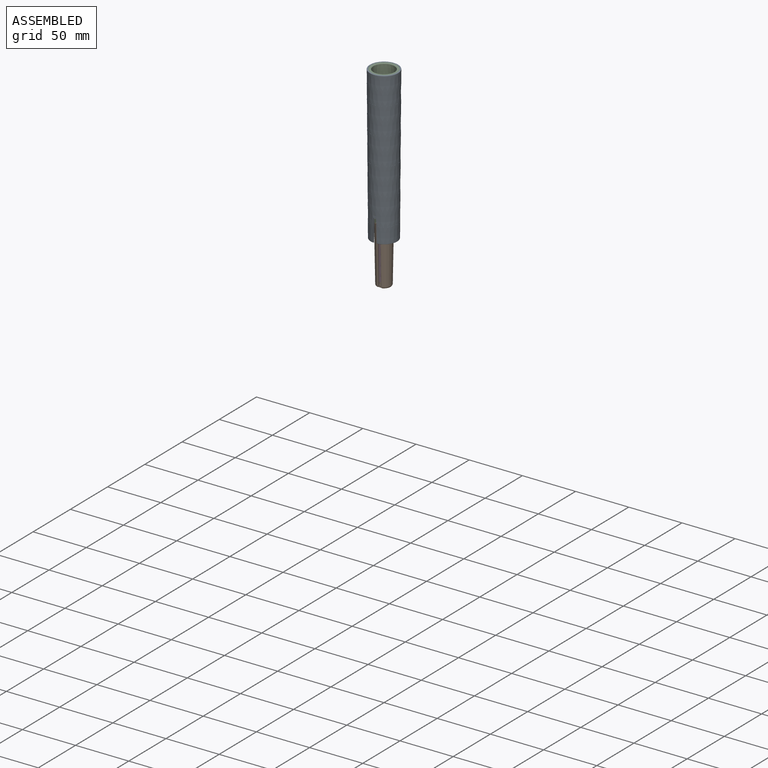
[diagram: assembled view]
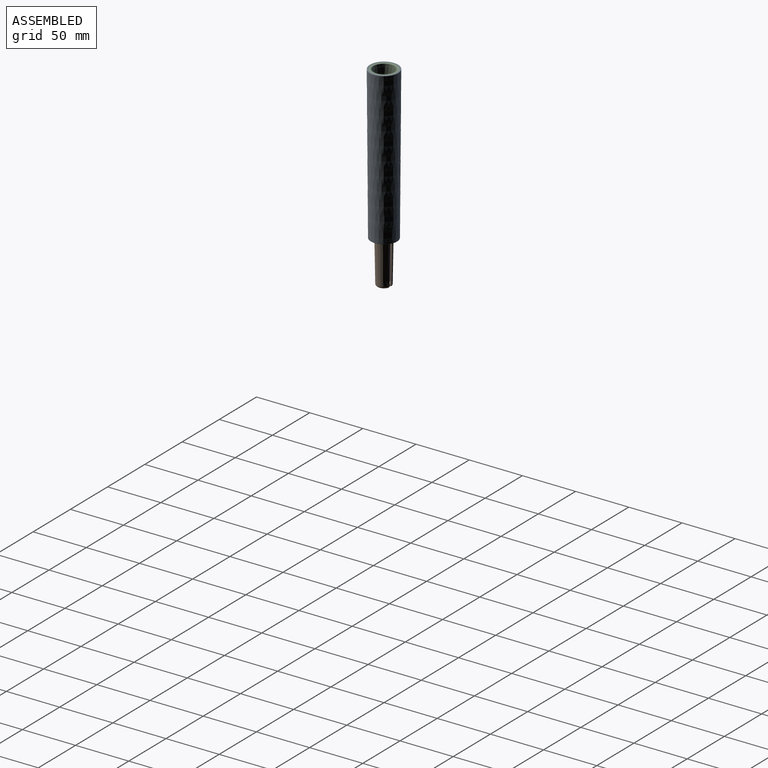
[diagram: assembled view, second angle]
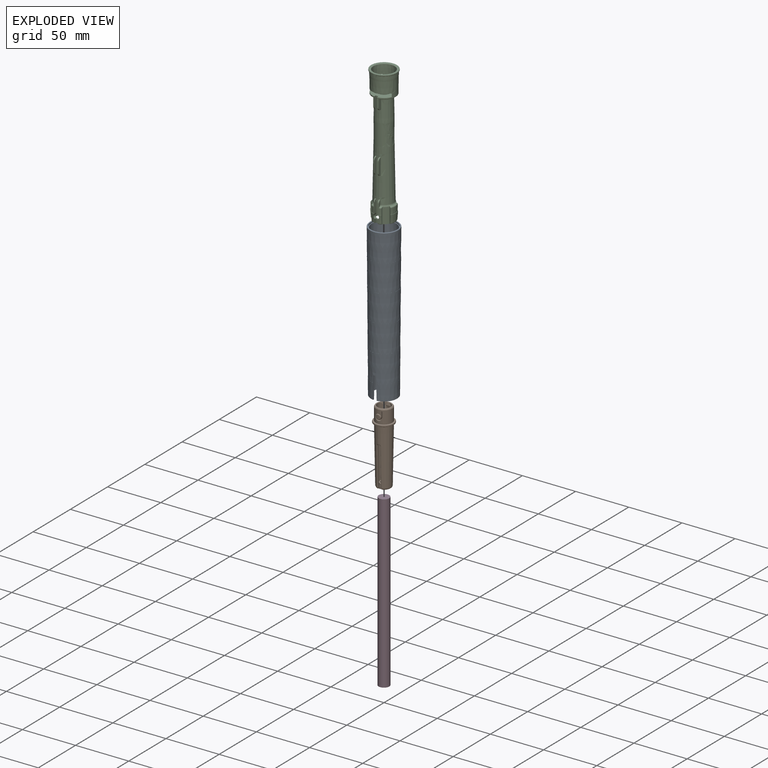
[diagram: exploded view]
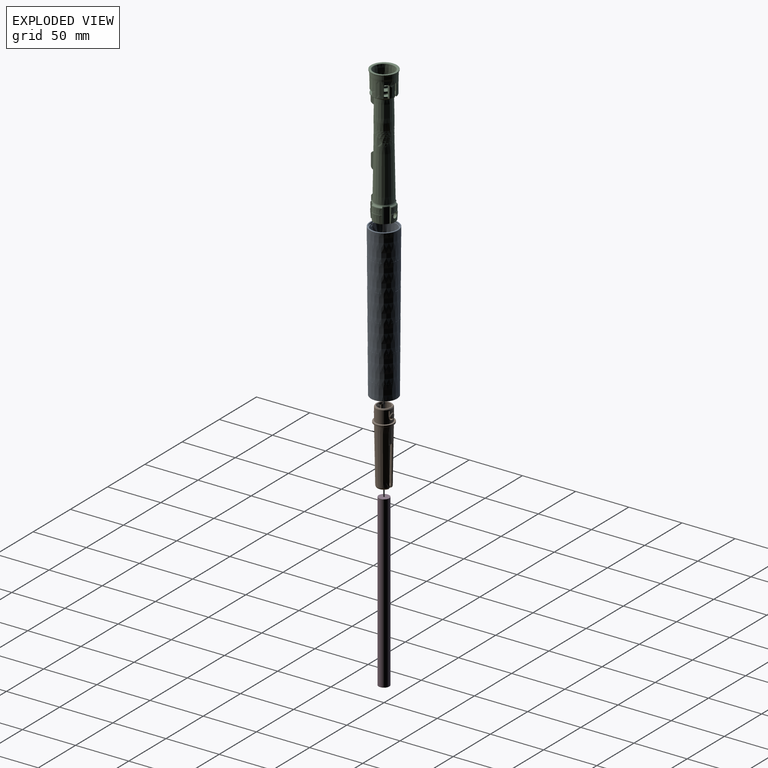
[diagram: exploded view, second angle]
ASSEMBLY  parts=4 mates=6
PART A: 39 faces, bbox 28.9x28.9x143.7 mm
  f0: plane 24.1x23.99mm, normal (0,0,-1), area 57.7mm2, adj f1,f2,f5,f6
  f1: torus R=12.05mm, axis (0,0,1), area 34.5mm2, adj f0,f2,f6,f13
  f2: plane 20.52x1.42mm, normal (-1,0,-0.02), area 26.2mm2, adj f0,f1,f3,f5,f8,f9,f13
  f3: cylinder r=0.5mm len=1.45mm, axis (0,1,0), area 1.1mm2, adj f2,f4,f5,f8
  f4: plane 1.55x1.43mm, normal (0,0,-1), area 2.2mm2, adj f3,f5,f7,f8
  f5: cone r=11.12mm half-angle=0.5deg, axis (0,0,-1), area 1623.4mm2, adj f0,f2,f3,f4,f6,f7,f29
  f6: plane 20.53x1.42mm, normal (1,0,-0.02), area 26.2mm2, adj f0,f1,f5,f7,f8,f9,f13
  f7: cylinder r=0.5mm len=1.45mm, axis (0,1,0), area 1.1mm2, adj f4,f5,f6,f8
  f8: cone r=12.45mm half-angle=0.4deg, axis (0,0,1), area 992.5mm2, adj f2,f3,f4,f6,f7,f9,f32
  f9: plane 24.9x24.83mm, normal (0,0,1), area 3.8mm2, adj f2,f6,f8,f13
  f10: cone r=12.85mm half-angle=0.4deg, axis (0,0,1), area 1063.9mm2, adj f16,f19
  f11: cone r=12.85mm half-angle=0.4deg, axis (0,0,1), area 1053.1mm2, adj f18,f22
  f12: cone r=12.85mm half-angle=0.4deg, axis (0,0,1), area 1020.2mm2, adj f32,f33
  f13: cone r=12.85mm half-angle=0.4deg, axis (0,0,1), area 1079mm2, adj f1,f2,f6,f9
  f14: cone r=12.85mm half-angle=0.4deg, axis (0,0,1), area 1034.8mm2, adj f35,f36
  f15: cone r=12.85mm half-angle=0.4deg, axis (0,0,1), area 1049.3mm2, adj f21,f38
  f16: plane 26.34x26.34mm, normal (0,0,1), area 4.1mm2, adj f10,f17
  f17: cone r=13.17mm half-angle=0.4deg, axis (0,0,1), area 1067.1mm2, adj f16,f18
  f18: plane 26.52x26.52mm, normal (0,0,-1), area 4.2mm2, adj f11,f17
  f19: plane 26.16x26.16mm, normal (0,0,-1), area 4.1mm2, adj f10,f20
  f20: cone r=12.99mm half-angle=0.4deg, axis (0,0,1), area 1052.6mm2, adj f19,f21
  f21: plane 25.98x25.98mm, normal (0,0,1), area 4.1mm2, adj f15,f20
  f22: torus R=13.05mm, axis (0,0,1), area 39.4mm2, adj f11,f23
  f23: plane 26.1x26.1mm, normal (0,0,1), area 71.1mm2, adj f22,f24
  f24: cylinder r=12.15mm len=24.3mm, axis (0,0,1), area 95mm2, adj f23,f25,f26,f30,f31
  f25: plane 24.3x24.27mm, normal (0,0,1), area 44.3mm2, adj f24,f26,f27,f28,f31
  f26: plane 2.1x0.62mm, normal (-1,0,0), area 1.3mm2, adj f24,f25,f28,f30
  f27: cone r=11.13mm half-angle=0.4deg, axis (0,0,1), area 8276.5mm2, adj f25,f28,f29,f30,f31
  f28: cone r=11.13mm half-angle=0.4deg, axis (0,0,1), area 0mm2, adj f25,f26,f27
  f29: plane 22.03x22.03mm, normal (0,0,-1), area 20.4mm2, adj f5,f27
  f30: plane 1.6x0.65mm, normal (0,0,1), area 1mm2, adj f24,f26,f27,f31
  f31: plane 2.1x0.62mm, normal (1,0,0), area 1.3mm2, adj f24,f25,f27,f30
  f32: plane 25.08x25.08mm, normal (0,0,-1), area 3.9mm2, adj f8,f12
  f33: plane 25.26x25.26mm, normal (0,0,1), area 4mm2, adj f12,f34
  f34: cone r=12.63mm half-angle=0.4deg, axis (0,0,1), area 1023.4mm2, adj f33,f35
  f35: plane 25.44x25.44mm, normal (0,0,-1), area 4mm2, adj f14,f34
  f36: plane 25.62x25.62mm, normal (0,0,1), area 4mm2, adj f14,f37
  f37: cone r=12.81mm half-angle=0.4deg, axis (0,0,1), area 1038mm2, adj f36,f38
  f38: plane 25.8x25.8mm, normal (0,0,-1), area 4mm2, adj f15,f37
PART B: 73 faces, bbox 20.7x20.7x70 mm
  f0: plane 14.4x14.4mm, normal (0,0,1), area 42.1mm2, adj f1,f71
  f1: cone r=5.62mm half-angle=1deg, axis (0,0,1), area 2104.5mm2, adj f0,f2,f3,f10,f11,f12,f13,f14
  f2: plane 4.5x1.74mm, normal (1,0,0), area 7.6mm2, adj f1,f4,f11,f22
  f3: plane 4.5x1.74mm, normal (1,0,0), area 7.6mm2, adj f1,f4,f10,f23
  f4: cylinder r=7.7mm len=15.4mm, axis (0,0,1), area 506.4mm2, adj f2,f3,f5,f8,f9,f10,f11,f12
  f5: bspline ~0.87x0.86mm, area 0.4mm2, adj f4,f7,f72
  f6: cylinder r=8.4mm len=3.93mm, axis (0,0,1), area 11.2mm2, adj f8,f9
  f7: cylinder r=8.4mm len=3.93mm, axis (0,0,1), area 11.2mm2, adj f5,f72
  f8: bspline ~0.87x0.86mm, area 0.4mm2, adj f4,f6,f9
  f9: bspline ~5.3x5.14mm, area 14.1mm2, adj f4,f6,f8,f10
  f10: cylinder r=2.5mm len=5mm, axis (0,-1,0), area 18.4mm2, adj f1,f3,f4,f9,f13
  f11: cylinder r=2.5mm len=5mm, axis (0,-1,0), area 18.4mm2, adj f1,f2,f4,f12,f72
  f12: plane 4.5x1.74mm, normal (-1,0,0), area 7.6mm2, adj f1,f4,f11,f14
  f13: plane 4.5x1.74mm, normal (-1,0,0), area 7.6mm2, adj f1,f4,f10,f15
  f14: cylinder r=0.5mm len=2.22mm, axis (0,1,0), area 2.7mm2, adj f1,f4,f12,f16
  f15: cylinder r=0.5mm len=2.22mm, axis (0,1,0), area 2.7mm2, adj f1,f4,f13,f17
  f16: plane 4.5x1.89mm, normal (1,0,0), area 8.3mm2, adj f1,f4,f14,f18
  f17: plane 4.5x1.89mm, normal (1,0,0), area 8.3mm2, adj f1,f4,f15,f19
  f18: cylinder r=3.5mm len=7mm, axis (0,-1,0), area 15mm2, adj f1,f4,f16,f20
  f19: cylinder r=3.5mm len=7mm, axis (0,-1,0), area 15mm2, adj f1,f4,f17,f21
  f20: plane 4.5x1.89mm, normal (-1,0,0), area 8.3mm2, adj f1,f4,f18,f22
  f21: plane 4.5x1.89mm, normal (-1,0,0), area 8.3mm2, adj f1,f4,f19,f23
  f22: cylinder r=0.5mm len=2.22mm, axis (0,1,0), area 2.7mm2, adj f1,f2,f4,f20
  f23: cylinder r=0.5mm len=2.22mm, axis (0,1,0), area 2.7mm2, adj f1,f3,f4,f21
  f24: plane 37.35x2.44mm, normal (-1,0,0), area 42.7mm2, adj f1,f25,f44,f46,f47,f61
  f25: bspline ~36.32x1.41mm, area 33.4mm2, adj f24,f26,f47,f62
  f26: cone r=7.23mm half-angle=1deg, axis (0,0,1), area 2045.1mm2, adj f25,f27,f29,f30,f32,f33,f50,f51
  f27: bspline ~36.32x1.41mm, area 33.4mm2, adj f26,f28,f45,f50
  f28: bspline ~2.34x2.2mm, area 2.5mm2, adj f27,f30,f45,f46,f64
  f29: torus R=4.77mm, axis (0,0,1), area 44.9mm2, adj f26,f31,f37,f47
  f30: torus R=4.77mm, axis (0,0,1), area 44.9mm2, adj f26,f28,f37,f59
  f31: bspline ~2.34x2.2mm, area 2.5mm2, adj f29,f32,f35,f36,f63
  f32: bspline ~36.32x1.41mm, area 33.4mm2, adj f26,f31,f33,f35
  f33: bspline ~1.8x1.77mm, area 1.7mm2, adj f26,f32,f34,f54
  f34: cylinder r=1mm len=1.46mm, axis (0,1,0), area 1.9mm2, adj f1,f33,f35,f52
  f35: plane 37.35x2.44mm, normal (-1,0,0), area 42.7mm2, adj f1,f31,f32,f34,f36,f44
  f36: cylinder r=4.77mm len=3.96mm, axis (0,0,-1), area 5.8mm2, adj f31,f35,f37,f44,f57,f59
  f37: plane 9.55x9.53mm, normal (0,0,-1), area 64.5mm2, adj f29,f30,f36,f38,f46,f48,f60,f63
  f38: cylinder r=1.5mm len=3mm, axis (0,0,1), area 14.1mm2, adj f37,f39
  f39: plane 4.58x4.58mm, normal (0,0,1), area 9.4mm2, adj f38,f40
  f40: torus R=2.29mm, axis (0,0,1), area 12.1mm2, adj f39,f41
  f41: cone r=2.88mm half-angle=5deg, axis (0,0,1), area 37.4mm2, adj f40,f42
  f42: torus R=3.5mm, axis (0,0,1), area 34.7mm2, adj f41,f43
  f43: cone r=4.14mm half-angle=5deg, axis (0,0,-1), area 65mm2, adj f42,f44
  f44: torus R=4.03mm, axis (0,0,1), area 35.3mm2, adj f1,f24,f35,f36,f43,f45,f46,f57
  f45: plane 37.35x2.44mm, normal (1,0,0), area 42.7mm2, adj f1,f27,f28,f44,f46,f49
  f46: cylinder r=4.77mm len=3.96mm, axis (0,0,-1), area 5.8mm2, adj f24,f28,f37,f44,f45,f47
  f47: bspline ~2.32x2.2mm, area 2.5mm2, adj f24,f25,f29,f46,f48
  f48: cylinder r=0.5mm len=0.02mm, axis (0,1,0), area 0mm2, adj f37,f47
  f49: cylinder r=1mm len=1.46mm, axis (0,-1,0), area 1.9mm2, adj f1,f45,f50,f53
  f50: bspline ~1.8x1.77mm, area 1.7mm2, adj f26,f27,f49,f51
  f51: torus R=6.92mm, axis (0,0,1), area 0.8mm2, adj f26,f50,f53,f62
  f52: plane 1.28x1mm, normal (0,0,-1), area 1.3mm2, adj f1,f34,f54,f56
  f53: plane 1.28x1mm, normal (0,0,-1), area 1.3mm2, adj f1,f49,f51,f61
  f54: torus R=6.92mm, axis (0,0,1), area 0.8mm2, adj f26,f33,f52,f55
  f55: bspline ~1.81x1.77mm, area 1.7mm2, adj f26,f54,f56,f58
  f56: cylinder r=1mm len=1.46mm, axis (0,-1,0), area 1.9mm2, adj f1,f52,f55,f57
  f57: plane 37.35x2.44mm, normal (1,0,0), area 42.7mm2, adj f1,f36,f44,f56,f58,f59
  f58: bspline ~36.32x1.41mm, area 33.4mm2, adj f26,f55,f57,f59
  f59: bspline ~2.32x2.2mm, area 2.5mm2, adj f30,f36,f57,f58,f60
  f60: cylinder r=0.5mm len=0.02mm, axis (0,-1,0), area 0mm2, adj f37,f59
  f61: cylinder r=1mm len=1.46mm, axis (0,1,0), area 1.9mm2, adj f1,f24,f53,f62
  f62: bspline ~1.81x1.77mm, area 1.7mm2, adj f25,f26,f51,f61
  f63: cylinder r=0.5mm len=0.02mm, axis (0,1,0), area 0mm2, adj f31,f37
  f64: cylinder r=0.5mm len=0.02mm, axis (0,-1,0), area 0mm2, adj f28,f37
  f65: torus R=8.68mm, axis (0,0,1), area 78.6mm2, adj f26,f66
  f66: plane 17.8x17.8mm, normal (0,0,-1), area 12mm2, adj f65,f67
  f67: torus R=8.9mm, axis (0,0,1), area 26.9mm2, adj f66,f68
  f68: cylinder r=9.2mm len=18.4mm, axis (0,0,1), area 52mm2, adj f67,f69
  f69: torus R=8.9mm, axis (0,0,1), area 26.9mm2, adj f68,f70
  f70: plane 17.8x17.8mm, normal (0,0,1), area 62.6mm2, adj f4,f69
  f71: cone r=7.45mm half-angle=30deg, axis (0,0,-1), area 46.8mm2, adj f0,f4
  f72: bspline ~5.3x5.14mm, area 14.4mm2, adj f4,f5,f7,f11
PART C: 203 faces, bbox 280.6x280.4x362 mm
  f0: cylinder r=12.1mm len=24.2mm, axis (0,0,1), area 68mm2, adj f1,f146,f147,f148,f149,f150,f151
  f1: cone r=11.95mm half-angle=45deg, axis (0,0,1), area 31.2mm2, adj f0,f2,f147,f151
  f2: plane 23.6x23.58mm, normal (0,0,-1), area 25.6mm2, adj f1,f3,f147,f151
  f3: cone r=11.43mm half-angle=0.4deg, axis (0,0,1), area 226.3mm2, adj f2,f4,f147,f148,f149,f150,f151
  f4: cone r=11.34mm half-angle=5.2deg, axis (0,0,1), area 118.9mm2, adj f3,f5
  f5: cone r=11.22mm half-angle=0.4deg, axis (0,0,1), area 802.6mm2, adj f4,f6,f7,f8,f9,f18,f19,f20
  f6: torus R=10.67mm, axis (0,0,1), area 3.8mm2, adj f5,f10,f12,f17
  f7: torus R=10.67mm, axis (0,0,1), area 16.4mm2, adj f5,f13,f109,f165
  f8: torus R=10.67mm, axis (0,0,1), area 3.8mm2, adj f5,f14,f21,f180
  f9: torus R=10.67mm, axis (0,0,1), area 16.4mm2, adj f5,f15,f173,f189
  f10: bspline ~0.56x0.52mm, area 0.2mm2, adj f6,f11,f156,f157
  f11: cylinder r=0.3mm len=1.06mm, axis (0,-1,0), area 0.5mm2, adj f10,f12,f157,f161
  f12: plane 4.4x2.64mm, normal (0,0,-1), area 4.2mm2, adj f6,f11,f16,f25
  f13: plane 16.16x8.17mm, normal (0,0,-1), area 17.1mm2, adj f7,f25,f109,f164
  f14: plane 4.4x2.64mm, normal (0,0,-1), area 4.2mm2, adj f8,f22,f25,f181
  f15: plane 16.16x8.17mm, normal (0,0,-1), area 17.1mm2, adj f9,f25,f174,f189
  f16: cylinder r=0.3mm len=0.89mm, axis (0,1,0), area 0.4mm2, adj f12,f17,f123,f124
  f17: bspline ~0.62x0.61mm, area 0.4mm2, adj f6,f16,f18,f124
  f18: cylinder r=0.3mm len=10.5mm, axis (0,0.01,1), area 5.3mm2, adj f5,f17,f19,f124
  f19: bspline ~2.8x1.55mm, area 1.7mm2, adj f5,f18,f20,f183
  f20: cylinder r=0.3mm len=10.5mm, axis (0,-0.01,-1), area 5.3mm2, adj f5,f19,f21,f119
  f21: bspline ~0.61x0.61mm, area 0.4mm2, adj f8,f20,f22,f119
  f22: cylinder r=0.3mm len=0.89mm, axis (0,-1,0), area 0.4mm2, adj f14,f21,f23,f119
  f23: revolved ~0.54x0.35mm, area 0.1mm2, adj f22,f25,f119,f122
  f24: torus R=9.79mm, axis (0,0,1), area 7.1mm2, adj f26,f105,f110,f187
  f25: torus R=9.79mm, axis (0,0,1), area 149.6mm2, adj f12,f13,f14,f15,f23,f105,f109,f122
  f26: cylinder r=9.37mm len=2.6mm, axis (0,0,-1), area 4mm2, adj f24,f27,f110,f187
  f27: plane 20.9x20.35mm, normal (0,0,1), area 238.6mm2, adj f26,f28,f110,f111,f112,f113,f114,f115
  f28: cone r=5.7mm half-angle=1deg, axis (0,0,-1), area 616.3mm2, adj f27,f29,f30
  f29: revolved ~12.25x11.91mm, area 227.9mm2, adj f28,f30,f31
  f30: revolved ~12.25x11.91mm, area 227.9mm2, adj f28,f29,f31
  f31: cylinder r=5.96mm len=11.91mm, axis (0,0,1), area 380.1mm2, adj f29,f30,f32
  f32: torus R=431.96mm, axis (0,0,1), area 279.3mm2, adj f31,f33
  f33: cone r=6.44mm half-angle=1deg, axis (0,0,-1), area 1949.4mm2, adj f32,f34
  f34: plane 15.9x15.9mm, normal (0,0,-1), area 50.7mm2, adj f33,f36
  f35: cone r=7.91mm half-angle=0.4deg, axis (0,0,1), area 2.8mm2, adj f37,f38,f45
  f36: cone r=7.91mm half-angle=0.4deg, axis (0,0,1), area 564.7mm2, adj f34,f39,f40,f41,f43,f44,f45,f46
  f37: plane 6x3.6mm, normal (0,1,0), area 9.8mm2, adj f35,f39,f45,f201,f202
  f38: plane 6x3.6mm, normal (0,1,0), area 9.8mm2, adj f35,f39,f45,f199,f200
  f39: plane 19.83x19.74mm, normal (0,0,-1), area 95.4mm2, adj f36,f37,f38,f40,f42,f43,f54,f55
  f40: plane 1.76x1.03mm, normal (-0.87,0,-0.5), area 1.1mm2, adj f36,f39,f41,f42
  f41: plane 4.27x0.52mm, normal (-1,0,0), area 2.1mm2, adj f36,f40,f42,f44
  f42: cylinder r=8.36mm len=7.2mm, axis (0,0,-1), area 26.7mm2, adj f39,f40,f41,f43,f44,f46
  f43: plane 1.76x1.03mm, normal (0.87,0,-0.5), area 1.1mm2, adj f36,f39,f42,f46
  f44: cylinder r=2.6mm len=5.2mm, axis (0,1,0), area 42.9mm2, adj f36,f41,f42,f46,f51,f66,f87,f89
  f45: cylinder r=2.6mm len=5.2mm, axis (0,1,0), area 36.3mm2, adj f35,f36,f37,f38,f52,f53,f64,f68
  f46: plane 4.27x0.52mm, normal (1,0,0), area 2.1mm2, adj f36,f42,f43,f44
  f47: cone r=10.77mm half-angle=0.4deg, axis (0,0,1), area 50.6mm2, adj f54,f56,f77,f85
  f48: cone r=10.77mm half-angle=0.4deg, axis (0,0,1), area 56.1mm2, adj f76,f81,f83,f84
  f49: cone r=10.77mm half-angle=0.4deg, axis (0,0,1), area 11.9mm2, adj f70,f73,f75,f195
  f50: cone r=10.77mm half-angle=0.4deg, axis (0,0,1), area 11.9mm2, adj f95,f98,f99,f101
  f51: cone r=10.77mm half-angle=0.4deg, axis (0,0,1), area 48.4mm2, adj f44,f61,f63,f78,f87,f89
  f52: cone r=10.77mm half-angle=0.4deg, axis (0,0,1), area 28.6mm2, adj f45,f71,f74,f80,f86,f90,f194
  f53: cone r=10.77mm half-angle=0.4deg, axis (0,0,1), area 22.5mm2, adj f45,f79,f88,f93,f96,f100,f190
  f54: plane 15.27x1.54mm, normal (0.46,-0.89,0), area 17.2mm2, adj f39,f47,f55,f59,f67,f77,f85,f91
  f55: torus R=9.91mm, axis (0,0,-1), area 6.6mm2, adj f39,f54,f56,f67
  f56: plane 15.25x1.51mm, normal (0.46,0.89,0), area 17.1mm2, adj f39,f47,f55,f57,f58,f59,f67,f77
  f57: cylinder r=9.46mm len=14.3mm, axis (0,0,-1), area 82.6mm2, adj f39,f56,f58,f63
  f58: torus R=7.46mm, axis (0,0,1), area 5.6mm2, adj f56,f57,f59,f63
  f59: torus R=10.98mm, axis (0,0,1), area 88.7mm2, adj f54,f56,f58,f60,f61,f63,f74,f76
  f60: torus R=7.46mm, axis (0,0,1), area 5.6mm2, adj f59,f61,f83,f198
  f61: plane 15.37x2.01mm, normal (1,0,0), area 19mm2, adj f39,f51,f59,f60,f62,f66,f78,f89
  f62: torus R=9.91mm, axis (0,0,-1), area 6.8mm2, adj f39,f61,f63,f66
  f63: plane 15.37x2.01mm, normal (-1,0,0), area 19mm2, adj f39,f51,f57,f58,f59,f62,f66,f78
  f64: cone r=10.66mm half-angle=3.8deg, axis (0,0,1), area 28.5mm2, adj f45,f69,f72,f86,f90
  f65: cone r=10.66mm half-angle=3.8deg, axis (0,0,1), area 77.3mm2, adj f81,f82,f83,f84
  f66: cone r=10.66mm half-angle=3.8deg, axis (0,0,1), area 47.9mm2, adj f44,f61,f62,f63,f87,f89
  f67: cone r=10.66mm half-angle=3.8deg, axis (0,0,1), area 69.7mm2, adj f54,f55,f56,f85
  f68: cone r=10.66mm half-angle=3.8deg, axis (0,0,1), area 20mm2, adj f45,f88,f93,f94,f97
  f69: torus R=9.91mm, axis (0,0,-1), area 3.3mm2, adj f39,f64,f72,f90
  f70: plane 15.88x2.89mm, normal (1,0,0), area 35.5mm2, adj f49,f73,f102,f195
  f71: plane 12.19x1.93mm, normal (1,0,0), area 19.1mm2, adj f45,f52,f102,f191,f193,f194
  f72: plane 3.77x1.69mm, normal (1,0,0), area 5.7mm2, adj f39,f45,f64,f69,f192
  f73: bspline ~3.42x3.31mm, area 5.7mm2, adj f49,f70,f75,f102
  f74: plane 7.11x2.11mm, normal (-1,0,0), area 8.7mm2, adj f52,f59,f80,f102,f194
  f75: plane 16.14x3.18mm, normal (-1,0,0), area 36.6mm2, adj f49,f73,f102,f195
  f76: torus R=9.66mm, axis (0,0,1), area 11.2mm2, adj f48,f59,f81,f83
  f77: torus R=9.66mm, axis (0,0,1), area 10.1mm2, adj f47,f54,f56,f59
  f78: torus R=9.66mm, axis (0,0,1), area 10.2mm2, adj f51,f59,f61,f63
  f79: torus R=9.66mm, axis (0,0,1), area 2.2mm2, adj f53,f59,f93,f100
  f80: torus R=9.66mm, axis (0,0,1), area 3.5mm2, adj f52,f59,f74,f90
  f81: plane 15.25x1.51mm, normal (-0.46,-0.89,0), area 17.1mm2, adj f39,f48,f59,f65,f76,f82,f84,f196
  f82: torus R=9.91mm, axis (0,0,-1), area 7.4mm2, adj f39,f65,f81,f83
  f83: plane 15.25x1.51mm, normal (-0.46,0.89,0), area 17.1mm2, adj f39,f48,f59,f60,f65,f76,f82,f84
  f84: plane 10.08x1.5mm, normal (0,0,1), area 3.1mm2, adj f48,f65,f81,f83
  f85: plane 9.17x1.5mm, normal (0,0,1), area 2.8mm2, adj f47,f54,f56,f67
  f86: plane 3.7x1.63mm, normal (0,0,1), area 1.2mm2, adj f45,f52,f64,f90
  f87: plane 2.7x1.11mm, normal (0,0,1), area 0.8mm2, adj f44,f51,f63,f66
  f88: plane 2.7x1.11mm, normal (0,0,1), area 0.8mm2, adj f45,f53,f68,f93
  f89: plane 2.7x1.11mm, normal (0,0,1), area 0.8mm2, adj f44,f51,f61,f66
  f90: plane 15.43x2.19mm, normal (-1,0,0), area 20.2mm2, adj f39,f52,f59,f64,f69,f80,f86,f91
  f91: cylinder r=9.46mm len=14.3mm, axis (0,0,-1), area 80.2mm2, adj f39,f54,f90,f92
  f92: torus R=7.46mm, axis (0,0,1), area 5.4mm2, adj f54,f59,f90,f91
  f93: plane 15.37x2.01mm, normal (1,0,0), area 19mm2, adj f39,f53,f59,f68,f79,f88,f94,f196
  f94: torus R=9.91mm, axis (0,0,-1), area 2.4mm2, adj f39,f68,f93,f97
  f95: plane 15.88x2.89mm, normal (-1,0,0), area 35.5mm2, adj f50,f98,f101,f102
  f96: plane 12.19x1.93mm, normal (-1,0,0), area 19.1mm2, adj f45,f53,f102,f190,f191,f193
  f97: plane 3.77x1.69mm, normal (-1,0,0), area 5.7mm2, adj f39,f45,f68,f94,f192
  f98: bspline ~3.23x3.02mm, area 5.1mm2, adj f50,f95,f99,f102
  f99: plane 16.14x3.18mm, normal (1,0,0), area 36.6mm2, adj f50,f98,f101,f102
  f100: plane 7.11x2.11mm, normal (1,0,0), area 8.7mm2, adj f53,f59,f79,f102,f190
  f101: bspline ~3.42x3.31mm, area 5.7mm2, adj f50,f95,f99,f102
  f102: cone r=8.53mm half-angle=1deg, axis (0,0,-1), area 2563.4mm2, adj f59,f70,f71,f73,f74,f75,f95,f96
  f103: revolved ~20x6.71mm, area 137.3mm2, adj f102,f104,f105
  f104: bspline ~20.41x17.17mm, area 876.9mm2, adj f102,f103,f105
  f105: cone r=7.96mm half-angle=1deg, axis (0,0,-1), area 969.2mm2, adj f24,f25,f103,f104,f106,f107,f109,f110
  f106: plane 1.2x0.75mm, normal (0,-0.09,-1), area 0.5mm2, adj f105,f108,f109,f110
  f107: plane 1.21x0.75mm, normal (0,-0.09,-1), area 0.5mm2, adj f105,f187,f188,f189
  f108: bspline ~3.5x3.28mm, area 5.7mm2, adj f5,f106,f109,f110
  f109: plane 11.36x3.95mm, normal (1,0,0), area 32.6mm2, adj f5,f7,f13,f25,f105,f106,f108
  f110: plane 12.11x3.64mm, normal (-1,0,0), area 34.3mm2, adj f5,f24,f26,f27,f105,f106,f108,f111
  f111: torus R=10.97mm, axis (0,0,1), area 3.8mm2, adj f5,f27,f110,f113
  f112: torus R=10.97mm, axis (0,0,1), area 3.8mm2, adj f5,f27,f185,f187
  f113: cylinder r=0.2mm len=3.4mm, axis (0,-0.02,1), area 1.7mm2, adj f5,f27,f111,f114,f125,f186
  f114: plane 3.98x3mm, normal (-1,0,0), area 11.9mm2, adj f27,f113,f118,f125
  f115: cylinder r=10.05mm len=5mm, axis (0,0,1), area 16.3mm2, adj f27,f119,f125,f136
  f116: cylinder r=10.05mm len=5mm, axis (0,0,1), area 16.3mm2, adj f27,f124,f125,f157
  f117: cylinder r=10.05mm len=5.69mm, axis (0,0,1), area 18.2mm2, adj f27,f125,f140,f184
  f118: cylinder r=10.05mm len=5.69mm, axis (0,0,1), area 18.2mm2, adj f27,f114,f125,f163
  f119: plane 10.79x1.32mm, normal (1,0,0), area 11.3mm2, adj f20,f21,f22,f23,f27,f115,f120,f121
  f120: cylinder r=9.71mm len=2mm, axis (0,0,-1), area 2.1mm2, adj f27,f119,f122,f124
  f121: cylinder r=9.71mm len=2mm, axis (0,0,-1), area 3mm2, adj f119,f124,f125,f132
  f122: torus R=9.21mm, axis (0,0,-1), area 1.5mm2, adj f23,f25,f119,f120,f123,f124
  f123: bspline ~0.66x0.44mm, area 0.1mm2, adj f16,f25,f122,f124
  f124: plane 10.79x1.32mm, normal (-1,0,0), area 11.3mm2, adj f16,f17,f18,f27,f116,f120,f121,f122
  f125: plane 21x20.36mm, normal (0,0,-1), area 261.6mm2, adj f113,f114,f115,f116,f117,f118,f119,f121
  f126: cylinder r=5mm len=10mm, axis (0,0,1), area 131.9mm2, adj f125,f127
  f127: torus R=5.3mm, axis (0,0,1), area 15.1mm2, adj f126,f128
  f128: plane 11.02x11.02mm, normal (0,0,1), area 7.1mm2, adj f127,f129
  f129: torus R=5.51mm, axis (0,0,1), area 16.5mm2, adj f128,f130
  f130: cone r=5.84mm half-angle=2deg, axis (0,0,-1), area 52.7mm2, adj f129,f131
  f131: torus R=6.36mm, axis (0,0,1), area 24.7mm2, adj f130,f132
  f132: cone r=7.98mm half-angle=76.9deg, axis (0,0,-1), area 178mm2, adj f121,f131,f133,f134,f135,f138,f159
  f133: plane 5x2.07mm, normal (0,0,1), area 0.2mm2, adj f119,f132,f136,f142
  f134: plane 19.5x15.27mm, normal (0,0,1), area 1.8mm2, adj f132,f140,f143,f163
  f135: plane 5x2.07mm, normal (0,0,1), area 0.2mm2, adj f124,f132,f141,f157
  f136: plane 10.76x1.78mm, normal (-1,0,0), area 16.3mm2, adj f27,f115,f125,f133,f137,f138,f139,f142
  f137: cylinder r=9.71mm len=2.13mm, axis (0,0,-1), area 3.1mm2, adj f27,f136,f139,f140
  f138: cylinder r=9.71mm len=2.13mm, axis (0,0,-1), area 4.4mm2, adj f125,f132,f136,f140
  f139: torus R=9.21mm, axis (0,0,-1), area 2mm2, adj f25,f136,f137,f140,f175,f182
  f140: plane 10.79x1.12mm, normal (0.57,0.82,0), area 11.5mm2, adj f27,f117,f125,f134,f137,f138,f139,f143
  f141: cylinder r=9.75mm len=6.65mm, axis (0,0,1), area 33.6mm2, adj f124,f135,f144,f157,f167,f183
  f142: cylinder r=9.75mm len=6.65mm, axis (0,0,1), area 33.6mm2, adj f119,f133,f136,f144,f178,f183
  f143: cylinder r=9.75mm len=19.5mm, axis (0,0,1), area 254.3mm2, adj f134,f140,f144,f152,f163,f176
  f144: cone r=9.78mm half-angle=0.4deg, axis (0,0,1), area 523.3mm2, adj f141,f142,f143,f145,f152,f167,f168,f169
  f145: torus R=10.31mm, axis (0,0,1), area 49.1mm2, adj f144,f146
  f146: plane 24.2x24.2mm, normal (0,0,1), area 126.2mm2, adj f0,f145
  f147: plane 2x0.67mm, normal (1,0,0), area 1.2mm2, adj f0,f1,f2,f3,f148
  f148: plane 0.69x0.3mm, normal (0.71,0,-0.71), area 0.3mm2, adj f0,f3,f147,f149
  f149: plane 0.9x0.68mm, normal (0,0,-1), area 0.6mm2, adj f0,f3,f148,f150
  f150: plane 0.69x0.3mm, normal (-0.71,0,-0.71), area 0.3mm2, adj f0,f3,f149,f151
  f151: plane 2x0.67mm, normal (-1,0,0), area 1.2mm2, adj f0,f1,f2,f3,f150
  f152: cylinder r=1mm len=1.59mm, axis (0.82,0.57,0), area 1.9mm2, adj f143,f144,f153,f163,f168
  f153: bspline ~1.54x1.27mm, area 0.8mm2, adj f5,f152,f154,f166
  f154: torus R=10.95mm, axis (0,0,1), area 1mm2, adj f5,f153,f155,f168
  f155: bspline ~1.67x1.57mm, area 0.8mm2, adj f5,f154,f156,f167
  f156: cylinder r=0.3mm len=10.5mm, axis (0,-0.01,-1), area 3.2mm2, adj f5,f10,f155,f157
  f157: plane 10.73x1.75mm, normal (1,0,0), area 16.3mm2, adj f10,f11,f27,f116,f125,f135,f141,f156
  f158: cylinder r=9.71mm len=2.13mm, axis (0,0,-1), area 3.1mm2, adj f27,f157,f160,f163
  f159: cylinder r=9.71mm len=2.13mm, axis (0,0,-1), area 4.4mm2, adj f125,f132,f157,f163
  f160: torus R=9.21mm, axis (0,0,-1), area 2mm2, adj f25,f157,f158,f161,f162,f163
  f161: revolved ~0.67x0.36mm, area 0.2mm2, adj f11,f25,f157,f160
  f162: revolved ~0.61x0.51mm, area 0.1mm2, adj f25,f160,f163,f164
  f163: plane 11.13x1.46mm, normal (-0.57,0.82,0), area 11.5mm2, adj f27,f118,f125,f134,f143,f152,f158,f159
  f164: cylinder r=0.3mm len=0.9mm, axis (0.82,0.57,0), area 0.4mm2, adj f13,f162,f163,f165
  f165: revolved ~0.76x0.61mm, area 0.3mm2, adj f7,f163,f164,f166
  f166: cylinder r=0.3mm len=10.5mm, axis (0.01,0,1), area 5mm2, adj f5,f153,f163,f165
  f167: cylinder r=1mm len=2.56mm, axis (0,-1,0), area 2.6mm2, adj f141,f144,f155,f157,f168
  f168: plane 2.11x1.42mm, normal (0,0,-1), area 1.6mm2, adj f144,f152,f154,f167
  f169: plane 2.11x1.42mm, normal (0,0,-1), area 1.6mm2, adj f144,f170,f176,f178
  f170: torus R=10.95mm, axis (0,0,1), area 1mm2, adj f5,f169,f171,f177
  f171: bspline ~1.54x1.27mm, area 0.8mm2, adj f5,f170,f172,f176
  f172: cylinder r=0.3mm len=10.5mm, axis (0.01,0,-1), area 5mm2, adj f5,f140,f171,f173
  f173: bspline ~0.66x0.61mm, area 0.4mm2, adj f9,f140,f172,f174
  f174: cylinder r=0.3mm len=0.9mm, axis (0.82,-0.57,0), area 0.4mm2, adj f15,f140,f173,f175
  f175: revolved ~0.61x0.51mm, area 0.1mm2, adj f25,f139,f140,f174
  f176: cylinder r=1mm len=1.59mm, axis (0.82,-0.57,0), area 1.9mm2, adj f140,f143,f144,f169,f171
  f177: bspline ~1.67x1.57mm, area 0.8mm2, adj f5,f170,f178,f179
  f178: cylinder r=1mm len=2.56mm, axis (0,1,0), area 2.6mm2, adj f136,f142,f144,f169,f177
  f179: cylinder r=0.3mm len=10.5mm, axis (0,0.01,1), area 3.2mm2, adj f5,f136,f177,f180
  f180: bspline ~0.56x0.52mm, area 0.2mm2, adj f8,f136,f179,f181
  f181: cylinder r=0.3mm len=1.06mm, axis (0,1,0), area 0.5mm2, adj f14,f136,f180,f182
  f182: revolved ~0.67x0.36mm, area 0.2mm2, adj f25,f136,f139,f181
  f183: cylinder r=1mm len=2mm, axis (0,-1,0), area 3.6mm2, adj f19,f119,f124,f141,f142,f144
  f184: plane 3.98x3mm, normal (1,0,0), area 11.9mm2, adj f27,f117,f125,f185
  f185: cylinder r=0.2mm len=3.4mm, axis (0,0.02,-1), area 1.7mm2, adj f5,f27,f112,f125,f184,f186
  f186: torus R=11mm, axis (0,0,1), area 8.3mm2, adj f5,f113,f125,f185
  f187: plane 12.11x3.64mm, normal (1,0,0), area 34.3mm2, adj f5,f24,f26,f27,f105,f107,f112,f188
  f188: bspline ~3.5x3.28mm, area 5.7mm2, adj f5,f107,f187,f189
  f189: plane 11.36x3.95mm, normal (-1,0,0), area 32.6mm2, adj f5,f9,f15,f25,f105,f107,f188
  f190: bspline ~3.14x2.45mm, area 4.4mm2, adj f53,f96,f100,f102
  f191: plane 2.6x0.14mm, normal (0,0,1), area 0.1mm2, adj f71,f96,f102,f193
  f192: cylinder r=8.98mm len=3.75mm, axis (0,0,-1), area 9.3mm2, adj f39,f45,f72,f97
  f193: cylinder r=8.98mm len=10.55mm, axis (0,0,-1), area 27.1mm2, adj f45,f71,f96,f191
  f194: bspline ~3.14x2.45mm, area 4.4mm2, adj f52,f71,f74,f102
  f195: bspline ~3.23x3.02mm, area 5.1mm2, adj f49,f70,f75,f102
  f196: torus R=7.46mm, axis (0,0,1), area 5.6mm2, adj f59,f81,f93,f197
  f197: cylinder r=9.46mm len=14.3mm, axis (0,0,-1), area 82.6mm2, adj f39,f81,f93,f196
  f198: cylinder r=9.46mm len=14.3mm, axis (0,0,-1), area 82.6mm2, adj f39,f60,f61,f83
  f199: plane 4.27x0.43mm, normal (1,0,0), area 1.8mm2, adj f36,f38,f45,f200
  f200: plane 1.76x1.03mm, normal (0.87,0,-0.5), area 1.3mm2, adj f36,f38,f39,f199
  f201: plane 4.27x0.43mm, normal (-1,0,0), area 1.8mm2, adj f36,f37,f45,f202
  f202: plane 1.76x1.03mm, normal (-0.87,0,-0.5), area 1.3mm2, adj f36,f37,f39,f201
PART D: 3 faces, bbox 10x10x160 mm
  f0: cylinder r=5mm len=160mm, axis (0,0,1), area 5026.5mm2, adj f1,f2
  f1: plane 10x10mm, normal (0,0,-1), area 78.5mm2, adj f0
  f2: plane 10x10mm, normal (0,0,1), area 78.5mm2, adj f0
PLACE A at identity fixed
PLACE B rot(axis=(0,0,1),180deg) t=(0,0,-0.05)mm
PLACE C t=(0,0,-0.05)mm
PLACE D t=(0,0,-0.05)mm
MATE cylindrical A.f1 <-> C.f0  axis (0,0,1) through (0,0,187.7)mm
MATE planar B.f1 <-> C.f39  axis (0,0,1) through (0,0,59.95)mm
MATE planar C.f27 <-> D.f0  axis (0,0,1) through (0,-0.73,168.15)mm
MATE cylindrical D.f0 <-> C.f0  axis (0,0,1) through (0,0,168.15)mm
MATE cylindrical B.f1 <-> C.f0  axis (0,0,1) through (0,0,72.08)mm
MATE planar C.f2 <-> A.f25  axis (0,0,-1) through (0,0.24,186.5)mm
